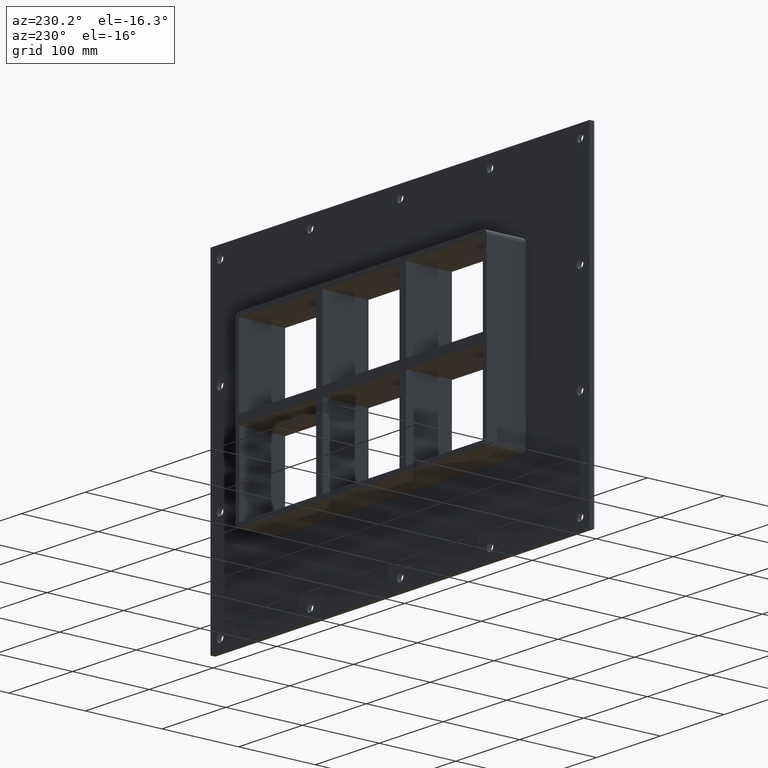
[diagram: clean part render]
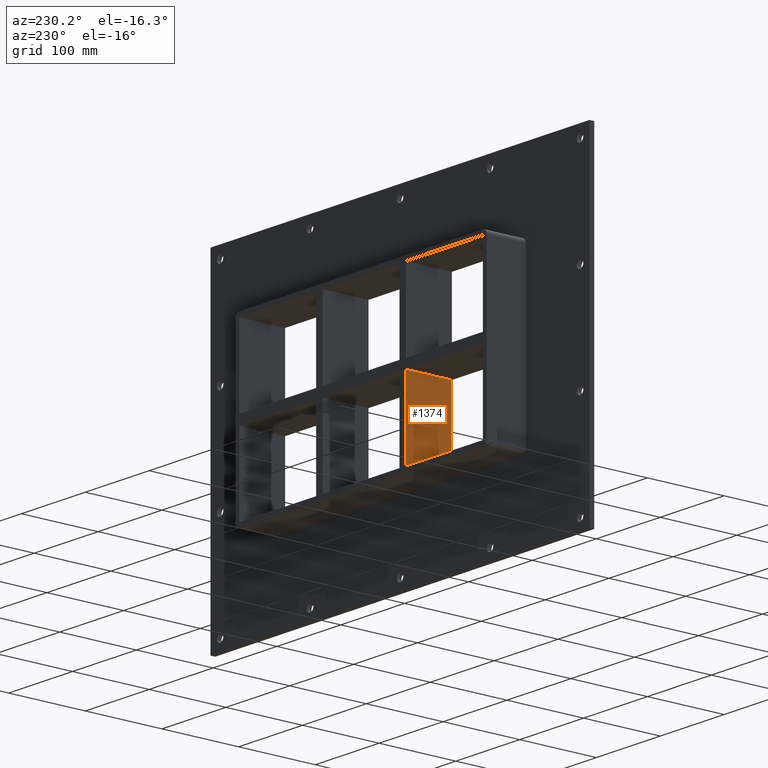
[diagram: same view with one face highlighted and labeled with its STEP entity id]
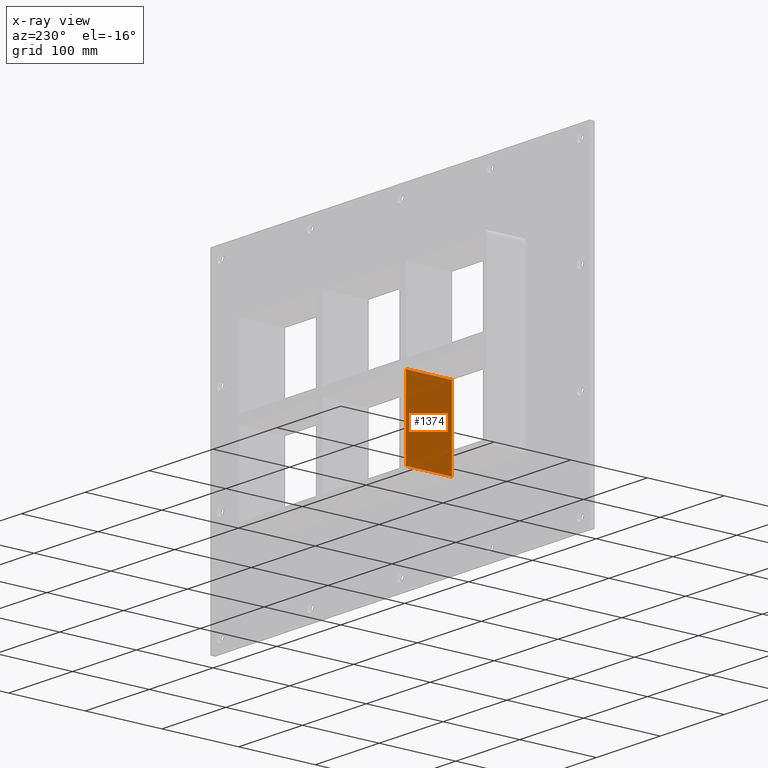
[diagram: x-ray of the same camera — body ghosted, the highlighted face saturated]
A machine part, auxiliary view. The second image highlights one B-rep face of the part: STEP entity #1374.
The next image is the same camera in x-ray: the body ghosted, the highlighted face saturated — about 1% of this face is hidden behind the body in this view.
In plain terms, the highlighted planar face has unit normal (-1, 0, 0).
Its self-contained STEP definition (entity closure, byte-faithful):
#843=CARTESIAN_POINT('',(-70.250000000001364,-3.0,-6.000000000009322));
#844=VERTEX_POINT('',#843);
#853=CARTESIAN_POINT('',(-70.250000000001336,-3.0,-107.0));
#854=VERTEX_POINT('',#853);
#855=CARTESIAN_POINT('',(-70.250000000001336,-3.0,-107.0));
#856=DIRECTION('',(0.0,0.0,1.0));
#857=VECTOR('',#856,100.99999999999068);
#858=LINE('',#855,#857);
#859=EDGE_CURVE('',#854,#844,#858,.T.);
#1037=CARTESIAN_POINT('',(-70.250000000001364,57.0,-6.000000000009322));
#1038=VERTEX_POINT('',#1037);
#1039=CARTESIAN_POINT('',(-70.25000000000135,-3.0,-6.000000000009322));
#1040=DIRECTION('',(0.0,1.0,0.0));
#1041=VECTOR('',#1040,60.0);
#1042=LINE('',#1039,#1041);
#1043=EDGE_CURVE('',#844,#1038,#1042,.T.);
#1293=CARTESIAN_POINT('',(-70.250000000001336,57.0,-107.0));
#1294=VERTEX_POINT('',#1293);
#1301=CARTESIAN_POINT('',(-70.250000000001336,57.0,-107.0));
#1302=DIRECTION('',(0.0,0.0,1.0));
#1303=VECTOR('',#1302,100.99999999999068);
#1304=LINE('',#1301,#1303);
#1305=EDGE_CURVE('',#1294,#1038,#1304,.T.);
#1358=CARTESIAN_POINT('',(-70.250000000001336,-3.0,-107.0));
#1359=DIRECTION('',(-1.0,0.0,0.0));
#1360=DIRECTION('',(0.0,0.0,1.0));
#1361=AXIS2_PLACEMENT_3D('',#1358,#1359,#1360);
#1362=PLANE('',#1361);
#1363=ORIENTED_EDGE('',*,*,#1043,.T.);
#1364=ORIENTED_EDGE('',*,*,#1305,.F.);
#1365=CARTESIAN_POINT('',(-70.250000000001336,-3.0,-107.0));
#1366=DIRECTION('',(0.0,1.0,0.0));
#1367=VECTOR('',#1366,60.000000000000007);
#1368=LINE('',#1365,#1367);
#1369=EDGE_CURVE('',#854,#1294,#1368,.T.);
#1370=ORIENTED_EDGE('',*,*,#1369,.F.);
#1371=ORIENTED_EDGE('',*,*,#859,.T.);
#1372=EDGE_LOOP('',(#1363,#1364,#1370,#1371));
#1373=FACE_OUTER_BOUND('',#1372,.T.);
#1374=ADVANCED_FACE('',(#1373),#1362,.T.);